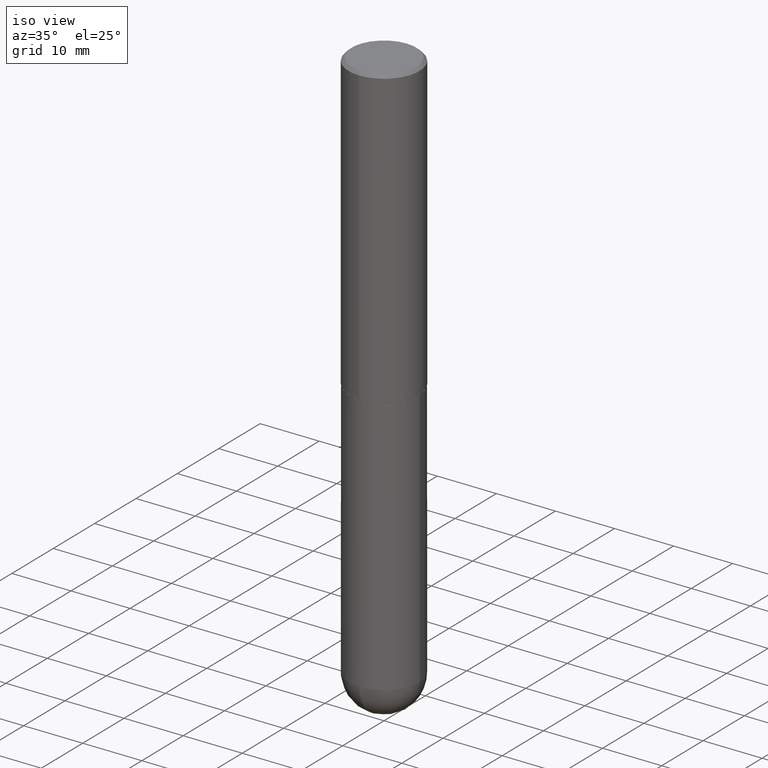
[diagram: clean part render]
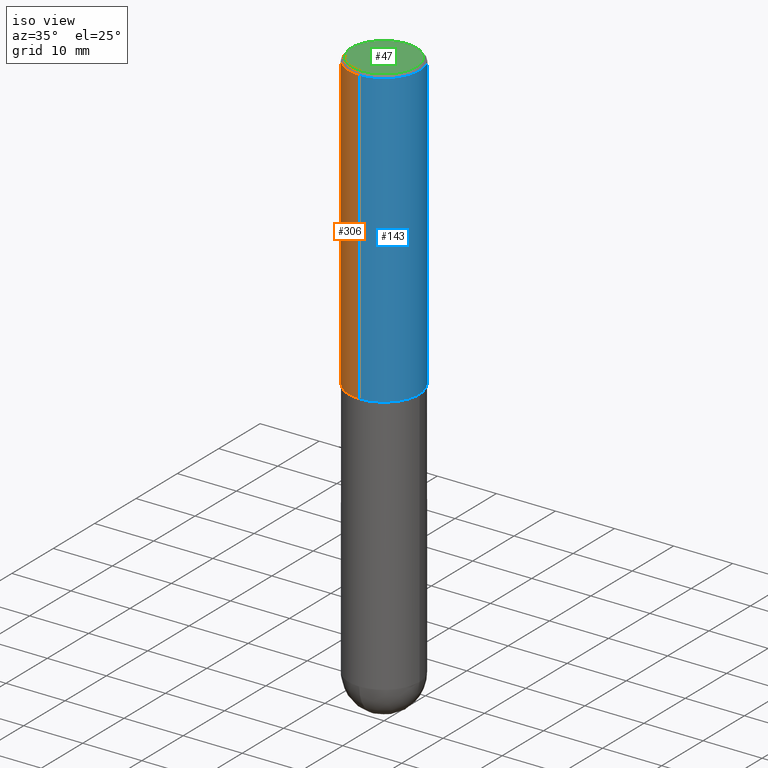
[diagram: same view with three faces highlighted in distinct colors, each labeled with its STEP entity id]
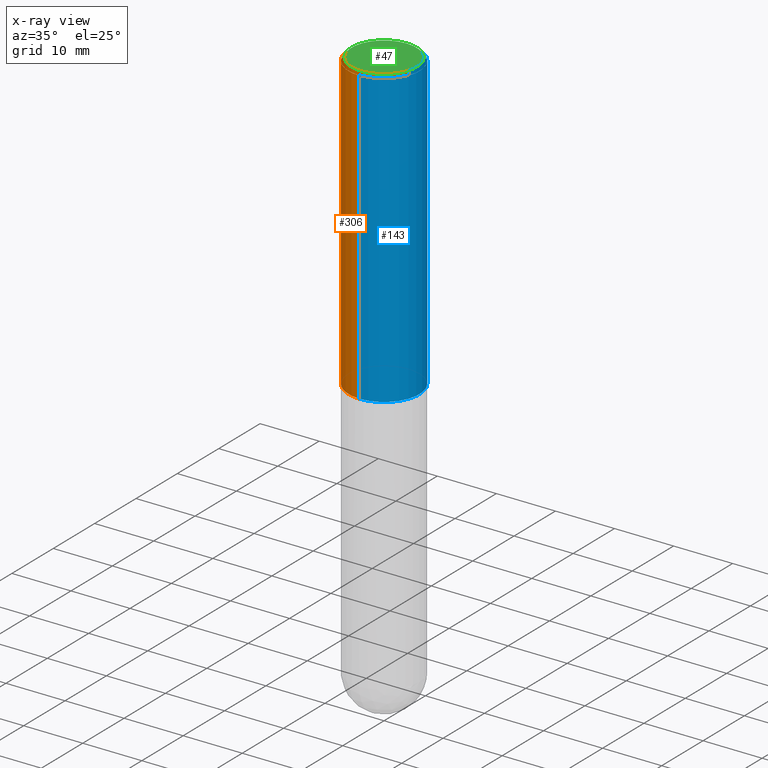
[diagram: x-ray of the same camera — body ghosted, the three highlighted faces saturated]
A machine part, iso view with three faces highlighted in distinct colors.
The next image is the same camera in x-ray (body ghosted, the three faces saturated) — at least one of them is partly hidden behind the body in this view.
Their STEP definitions:

[orange] entity #306 — the highlighted cylindrical surface (partial cylindrical patch) has radius 5.9995 mm, axis along (-0, 0, 1).
#13 = FACE_OUTER_BOUND ( 'NONE', #285, .T. ) ;
#16 = CIRCLE ( 'NONE', #42, 0.2362000000000002153 ) ;
#42 = AXIS2_PLACEMENT_3D ( 'NONE', #338, #400, #119 ) ;
#51 = CARTESIAN_POINT ( 'NONE',  ( -1.649375784469449391E-15, -0.2362000000000070710, -1.967499999999999361 ) ) ;
#53 = CARTESIAN_POINT ( 'NONE',  ( 1.649375784469496525E-15, 0.2361999999999999378, -0.02000000000000087472 ) ) ;
#58 = ORIENTED_EDGE ( 'NONE', *, *, #195, .F. ) ;
#72 = CARTESIAN_POINT ( 'NONE',  ( 1.678301941865381835E-15, 0.2361999999999933597, -1.967500000000001137 ) ) ;
#75 = DIRECTION ( 'NONE',  ( -2.444288450338274442E-29, 3.493171675597534541E-15, 1.000000000000000000 ) ) ;
#90 = VERTEX_POINT ( 'NONE', #72 ) ;
#105 = CARTESIAN_POINT ( 'NONE',  ( 1.678301941865357183E-15, 0.2362000000000001043, -8.250871497761379229E-16 ) ) ;
#107 = DIRECTION ( 'NONE',  ( -6.982962677686265922E-15, -1.000000000000000000, 3.493171675597534146E-15 ) ) ;
#119 = DIRECTION ( 'NONE',  ( -6.982962677686265133E-15, -1.000000000000000000, 3.469747663417773847E-15 ) ) ;
#144 = DIRECTION ( 'NONE',  ( -2.444288450338274722E-29, 3.493171675597534541E-15, 1.000000000000000000 ) ) ;
#147 = CARTESIAN_POINT ( 'NONE',  ( 4.888576900676561635E-31, -6.986343351195086880E-17, -0.02000000000000005246 ) ) ;
#158 = CARTESIAN_POINT ( 'NONE',  ( -1.649375784469496722E-15, -0.2362000000000001043, 8.250871497761379229E-16 ) ) ;
#175 = AXIS2_PLACEMENT_3D ( 'NONE', #147, #280, #379 ) ;
#195 = EDGE_CURVE ( 'NONE', #380, #293, #353, .T. ) ;
#196 = ORIENTED_EDGE ( 'NONE', *, *, #316, .T. ) ;
#209 = CYLINDRICAL_SURFACE ( 'NONE', #241, 0.2362000000000001043 ) ;
#241 = AXIS2_PLACEMENT_3D ( 'NONE', #334, #144, #107 ) ;
#280 = DIRECTION ( 'NONE',  ( -2.444288450338274722E-29, 3.493171675597534541E-15, 1.000000000000000000 ) ) ;
#282 = EDGE_CURVE ( 'NONE', #90, #380, #392, .T. ) ;
#285 = EDGE_LOOP ( 'NONE', ( #327, #196, #373, #58 ) ) ;
#292 = DIRECTION ( 'NONE',  ( -2.444288450338274442E-29, 3.493171675597534541E-15, 1.000000000000000000 ) ) ;
#293 = VERTEX_POINT ( 'NONE', #311 ) ;
#306 = ADVANCED_FACE ( 'NONE', ( #13 ), #209, .T. ) ;
#311 = CARTESIAN_POINT ( 'NONE',  ( -1.620449627073635079E-15, -0.2362000000000000766, -0.01999999999999922673 ) ) ;
#316 = EDGE_CURVE ( 'NONE', #90, #344, #16, .T. ) ;
#327 = ORIENTED_EDGE ( 'NONE', *, *, #282, .F. ) ;
#334 = CARTESIAN_POINT ( 'NONE',  ( 0.000000000000000000, 0.000000000000000000, 0.000000000000000000 ) ) ;
#338 = CARTESIAN_POINT ( 'NONE',  ( 4.809137526040556277E-29, -6.872815271738149679E-15, -1.967500000000000249 ) ) ;
#344 = VERTEX_POINT ( 'NONE', #51 ) ;
#353 = CIRCLE ( 'NONE', #175, 0.2361999999999999933 ) ;
#373 = ORIENTED_EDGE ( 'NONE', *, *, #394, .T. ) ;
#377 = LINE ( 'NONE', #158, #398 ) ;
#379 = DIRECTION ( 'NONE',  ( -6.982962677686265922E-15, -1.000000000000000000, 3.487819265831411744E-15 ) ) ;
#380 = VERTEX_POINT ( 'NONE', #53 ) ;
#391 = VECTOR ( 'NONE', #75, 39.37007874015748143 ) ;
#392 = LINE ( 'NONE', #105, #391 ) ;
#394 = EDGE_CURVE ( 'NONE', #344, #293, #377, .T. ) ;
#398 = VECTOR ( 'NONE', #292, 39.37007874015748143 ) ;
#400 = DIRECTION ( 'NONE',  ( -2.444288450338274722E-29, 3.493171675597534541E-15, 1.000000000000000000 ) ) ;

[blue] entity #143 — the highlighted cylindrical surface (partial cylindrical patch) has radius 5.9995 mm, axis along (-0, 0, 1).
#17 = DIRECTION ( 'NONE',  ( -6.982962677686265922E-15, -1.000000000000000000, 3.493171675597534146E-15 ) ) ;
#39 = CARTESIAN_POINT ( 'NONE',  ( 4.809137526040556277E-29, -6.872815271738149679E-15, -1.967500000000000249 ) ) ;
#50 = AXIS2_PLACEMENT_3D ( 'NONE', #238, #57, #17 ) ;
#51 = CARTESIAN_POINT ( 'NONE',  ( -1.649375784469449391E-15, -0.2362000000000070710, -1.967499999999999361 ) ) ;
#53 = CARTESIAN_POINT ( 'NONE',  ( 1.649375784469496525E-15, 0.2361999999999999378, -0.02000000000000087472 ) ) ;
#57 = DIRECTION ( 'NONE',  ( -2.444288450338274722E-29, 3.493171675597534541E-15, 1.000000000000000000 ) ) ;
#72 = CARTESIAN_POINT ( 'NONE',  ( 1.678301941865381835E-15, 0.2361999999999933597, -1.967500000000001137 ) ) ;
#75 = DIRECTION ( 'NONE',  ( -2.444288450338274442E-29, 3.493171675597534541E-15, 1.000000000000000000 ) ) ;
#90 = VERTEX_POINT ( 'NONE', #72 ) ;
#93 = DIRECTION ( 'NONE',  ( -6.982962677686265133E-15, -1.000000000000000000, 3.469747663417773847E-15 ) ) ;
#98 = CYLINDRICAL_SURFACE ( 'NONE', #50, 0.2362000000000001043 ) ;
#105 = CARTESIAN_POINT ( 'NONE',  ( 1.678301941865357183E-15, 0.2362000000000001043, -8.250871497761379229E-16 ) ) ;
#109 = AXIS2_PLACEMENT_3D ( 'NONE', #39, #169, #93 ) ;
#128 = EDGE_LOOP ( 'NONE', ( #412, #401, #192, #200 ) ) ;
#143 = ADVANCED_FACE ( 'NONE', ( #388 ), #98, .T. ) ;
#149 = CIRCLE ( 'NONE', #179, 0.2361999999999999933 ) ;
#158 = CARTESIAN_POINT ( 'NONE',  ( -1.649375784469496722E-15, -0.2362000000000001043, 8.250871497761379229E-16 ) ) ;
#165 = EDGE_CURVE ( 'NONE', #293, #380, #149, .T. ) ;
#169 = DIRECTION ( 'NONE',  ( -2.444288450338274722E-29, 3.493171675597534541E-15, 1.000000000000000000 ) ) ;
#179 = AXIS2_PLACEMENT_3D ( 'NONE', #226, #365, #372 ) ;
#192 = ORIENTED_EDGE ( 'NONE', *, *, #165, .F. ) ;
#200 = ORIENTED_EDGE ( 'NONE', *, *, #394, .F. ) ;
#218 = EDGE_CURVE ( 'NONE', #344, #90, #387, .T. ) ;
#226 = CARTESIAN_POINT ( 'NONE',  ( 4.888576900676561635E-31, -6.986343351195086880E-17, -0.02000000000000005246 ) ) ;
#238 = CARTESIAN_POINT ( 'NONE',  ( 0.000000000000000000, 0.000000000000000000, 0.000000000000000000 ) ) ;
#282 = EDGE_CURVE ( 'NONE', #90, #380, #392, .T. ) ;
#292 = DIRECTION ( 'NONE',  ( -2.444288450338274442E-29, 3.493171675597534541E-15, 1.000000000000000000 ) ) ;
#293 = VERTEX_POINT ( 'NONE', #311 ) ;
#311 = CARTESIAN_POINT ( 'NONE',  ( -1.620449627073635079E-15, -0.2362000000000000766, -0.01999999999999922673 ) ) ;
#344 = VERTEX_POINT ( 'NONE', #51 ) ;
#365 = DIRECTION ( 'NONE',  ( -2.444288450338274722E-29, 3.493171675597534541E-15, 1.000000000000000000 ) ) ;
#372 = DIRECTION ( 'NONE',  ( -6.982962677686265922E-15, -1.000000000000000000, 3.487819265831411744E-15 ) ) ;
#377 = LINE ( 'NONE', #158, #398 ) ;
#380 = VERTEX_POINT ( 'NONE', #53 ) ;
#387 = CIRCLE ( 'NONE', #109, 0.2362000000000002153 ) ;
#388 = FACE_OUTER_BOUND ( 'NONE', #128, .T. ) ;
#391 = VECTOR ( 'NONE', #75, 39.37007874015748143 ) ;
#392 = LINE ( 'NONE', #105, #391 ) ;
#394 = EDGE_CURVE ( 'NONE', #344, #293, #377, .T. ) ;
#398 = VECTOR ( 'NONE', #292, 39.37007874015748143 ) ;
#401 = ORIENTED_EDGE ( 'NONE', *, *, #282, .T. ) ;
#412 = ORIENTED_EDGE ( 'NONE', *, *, #218, .T. ) ;

[green] entity #47 — the highlighted planar face has unit normal (0, -0, -1).
#3 = DIRECTION ( 'NONE',  ( 6.982962677686265922E-15, 1.000000000000000000, -3.493171675597534541E-15 ) ) ;
#4 = CARTESIAN_POINT ( 'NONE',  ( 1.509716530915769534E-15, 0.2161999999999998368, -6.931475597545810117E-16 ) ) ;
#11 = FACE_OUTER_BOUND ( 'NONE', #219, .T. ) ;
#19 = ORIENTED_EDGE ( 'NONE', *, *, #177, .T. ) ;
#24 = DIRECTION ( 'NONE',  ( -6.982962677686265922E-15, -1.000000000000000000, 3.493171675597534541E-15 ) ) ;
#36 = CARTESIAN_POINT ( 'NONE',  ( -1.551844647095919353E-15, -0.2161999999999998368, 8.793760292833972036E-16 ) ) ;
#38 = DIRECTION ( 'NONE',  ( -6.982962677686265922E-15, -1.000000000000000000, 3.493171675597534541E-15 ) ) ;
#47 = ADVANCED_FACE ( 'NONE', ( #11 ), #68, .F. ) ;
#68 = PLANE ( 'NONE',  #125 ) ;
#79 = CARTESIAN_POINT ( 'NONE',  ( 1.579546157692632833E-15, 0.2161999999999998368, -6.310714032449755487E-16 ) ) ;
#91 = VERTEX_POINT ( 'NONE', #36 ) ;
#120 = ORIENTED_EDGE ( 'NONE', *, *, #407, .T. ) ;
#125 = AXIS2_PLACEMENT_3D ( 'NONE', #4, #139, #3 ) ;
#139 = DIRECTION ( 'NONE',  ( 2.444288450338274442E-29, -3.493171675597534541E-15, -1.000000000000000000 ) ) ;
#146 = CIRCLE ( 'NONE', #370, 0.2161999999999998368 ) ;
#170 = CIRCLE ( 'NONE', #199, 0.2161999999999998368 ) ;
#177 = EDGE_CURVE ( 'NONE', #91, #191, #146, .T. ) ;
#191 = VERTEX_POINT ( 'NONE', #79 ) ;
#199 = AXIS2_PLACEMENT_3D ( 'NONE', #256, #340, #38 ) ;
#213 = CARTESIAN_POINT ( 'NONE',  ( -3.034640647956391642E-45, 4.336853432986262076E-31, 1.241523130192108028E-16 ) ) ;
#219 = EDGE_LOOP ( 'NONE', ( #120, #19 ) ) ;
#256 = CARTESIAN_POINT ( 'NONE',  ( -3.034640647956391642E-45, 4.336853432986262076E-31, 1.241523130192108028E-16 ) ) ;
#317 = DIRECTION ( 'NONE',  ( -2.444288450338274722E-29, 3.493171675597534541E-15, 1.000000000000000000 ) ) ;
#340 = DIRECTION ( 'NONE',  ( -2.444288450338274722E-29, 3.493171675597534541E-15, 1.000000000000000000 ) ) ;
#370 = AXIS2_PLACEMENT_3D ( 'NONE', #213, #317, #24 ) ;
#407 = EDGE_CURVE ( 'NONE', #191, #91, #170, .T. ) ;